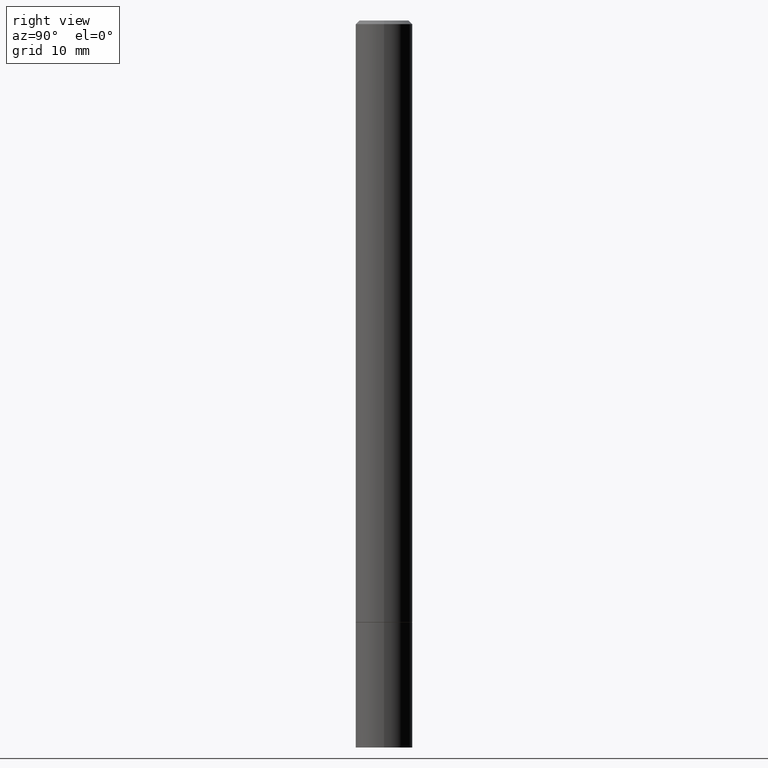
[diagram: clean part render]
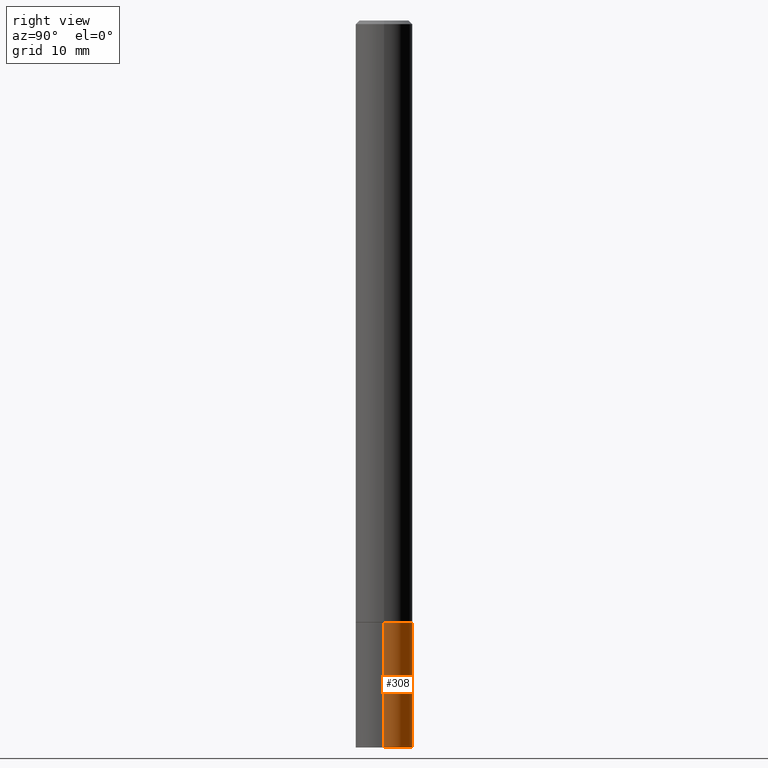
[diagram: same view with one face highlighted and labeled with its STEP entity id]
A machine part, right view. The second image highlights one B-rep face of the part: STEP entity #308.
In plain terms, the highlighted cylindrical surface (edge-blend (fillet) strip) has radius 3.9688 mm, axis along (-0, 0, 1).
Its self-contained STEP definition (entity closure, byte-faithful):
#1 = VERTEX_POINT ( 'NONE', #352 ) ;
#2 = DIRECTION ( 'NONE',  ( -2.445468806185136597E-29, 3.491481338843145583E-15, 1.000000000000000000 ) ) ;
#16 = VERTEX_POINT ( 'NONE', #98 ) ;
#36 = DIRECTION ( 'NONE',  ( 1.000000000000000000, -6.982962677686262766E-15, 0.000000000000000000 ) ) ;
#37 = DIRECTION ( 'NONE',  ( 1.000000000000000000, -6.982962677686266711E-15, 4.876176775795936353E-29 ) ) ;
#51 = CARTESIAN_POINT ( 'NONE',  ( 0.1562500000000000000, -1.091087918388479174E-15, 7.619026212181150377E-30 ) ) ;
#59 = CARTESIAN_POINT ( 'NONE',  ( 8.099392686085172175E-29, -1.156378619424849876E-14, -3.312000000000000277 ) ) ;
#76 = LINE ( 'NONE', #51, #295 ) ;
#80 = CARTESIAN_POINT ( 'NONE',  ( -0.1562500000000000000, 1.110223024625156540E-15, -7.685836078523291160E-30 ) ) ;
#91 = ORIENTED_EDGE ( 'NONE', *, *, #195, .T. ) ;
#98 = CARTESIAN_POINT ( 'NONE',  ( 0.1562500000000000000, -1.265487411263697714E-14, -3.312000000000000277 ) ) ;
#105 = DIRECTION ( 'NONE',  ( -2.445468806185136877E-29, 3.491481338843145188E-15, 1.000000000000000000 ) ) ;
#106 = EDGE_CURVE ( 'NONE', #16, #126, #288, .T. ) ;
#110 = VERTEX_POINT ( 'NONE', #146 ) ;
#112 = DIRECTION ( 'NONE',  ( -2.445468806185136597E-29, 3.491481338843145583E-15, 1.000000000000000000 ) ) ;
#120 = ORIENTED_EDGE ( 'NONE', *, *, #241, .F. ) ;
#123 = AXIS2_PLACEMENT_3D ( 'NONE', #59, #174, #36 ) ;
#126 = VERTEX_POINT ( 'NONE', #132 ) ;
#128 = LINE ( 'NONE', #80, #166 ) ;
#132 = CARTESIAN_POINT ( 'NONE',  ( -0.1562500000000000000, -1.165463275018538400E-14, -3.312000000000000277 ) ) ;
#139 = AXIS2_PLACEMENT_3D ( 'NONE', #205, #112, #173 ) ;
#146 = CARTESIAN_POINT ( 'NONE',  ( 0.1562500000000000000, -1.505701327376106229E-14, -4.000000000000000000 ) ) ;
#148 = ORIENTED_EDGE ( 'NONE', *, *, #338, .T. ) ;
#151 = ORIENTED_EDGE ( 'NONE', *, *, #106, .F. ) ;
#166 = VECTOR ( 'NONE', #105, 39.37007874015748143 ) ;
#167 = CIRCLE ( 'NONE', #139, 0.1562500000000000000 ) ;
#173 = DIRECTION ( 'NONE',  ( 1.000000000000000000, -6.982962677686262766E-15, 0.000000000000000000 ) ) ;
#174 = DIRECTION ( 'NONE',  ( -2.445468806185136597E-29, 3.491481338843145583E-15, 1.000000000000000000 ) ) ;
#195 = EDGE_CURVE ( 'NONE', #1, #126, #128, .T. ) ;
#205 = CARTESIAN_POINT ( 'NONE',  ( 9.781875224740546387E-29, -1.396592535537258233E-14, -4.000000000000000000 ) ) ;
#241 = EDGE_CURVE ( 'NONE', #110, #16, #76, .T. ) ;
#281 = CARTESIAN_POINT ( 'NONE',  ( 0.000000000000000000, 0.000000000000000000, 0.000000000000000000 ) ) ;
#288 = CIRCLE ( 'NONE', #123, 0.1562500000000000000 ) ;
#295 = VECTOR ( 'NONE', #362, 39.37007874015748143 ) ;
#308 = ADVANCED_FACE ( 'NONE', ( #318 ), #310, .T. ) ;
#309 = AXIS2_PLACEMENT_3D ( 'NONE', #281, #2, #37 ) ;
#310 = CYLINDRICAL_SURFACE ( 'NONE', #309, 0.1562500000000000000 ) ;
#318 = FACE_OUTER_BOUND ( 'NONE', #320, .T. ) ;
#320 = EDGE_LOOP ( 'NONE', ( #148, #91, #151, #120 ) ) ;
#338 = EDGE_CURVE ( 'NONE', #110, #1, #167, .T. ) ;
#352 = CARTESIAN_POINT ( 'NONE',  ( -0.1562500000000000000, -1.165463275018538400E-14, -4.000000000000000000 ) ) ;
#362 = DIRECTION ( 'NONE',  ( -2.445468806185136877E-29, 3.491481338843145188E-15, 1.000000000000000000 ) ) ;